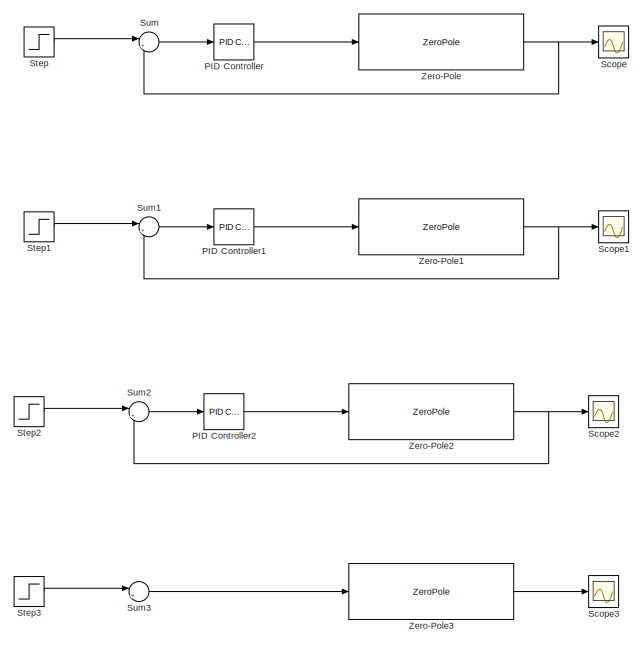
[diagram: root canvas - part 1/2, top center region]
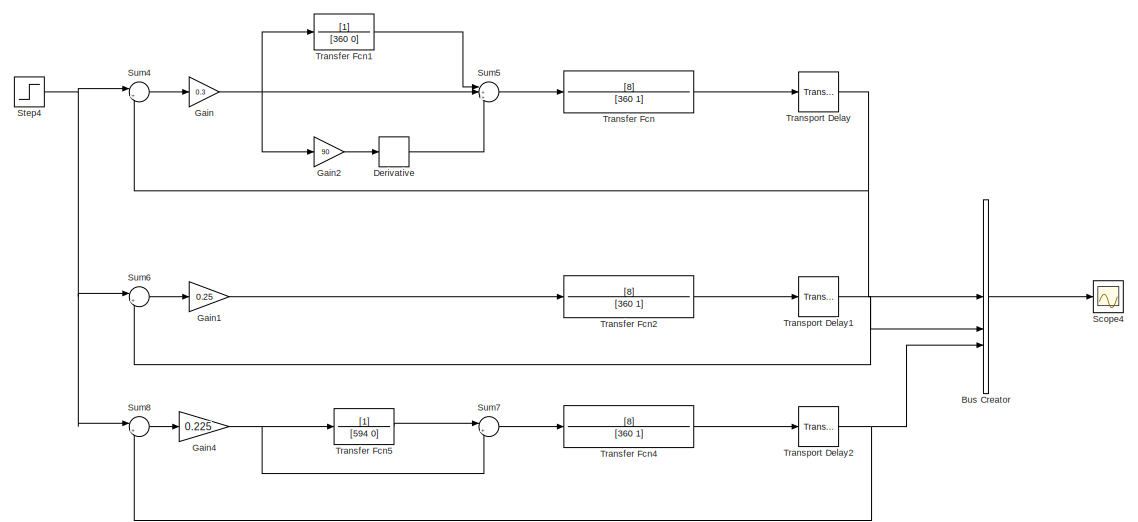
[diagram: root canvas - part 2/2, full width, bottom band]
MODEL slx_8572aa039337
KIND model
CONFIG AbsTol = auto
CONFIG EnableMultiTasking = off
CONFIG FixedStep = auto
CONFIG MaxStep = auto
CONFIG MinStep = auto
CONFIG RelTol = 1e-3
CONFIG SampleTimeConstraint = Unconstrained
CONFIG SolverName = VariableStepAuto
CONFIG StartTime = 0.0
CONFIG StopTime = 3000
BLOCK [BusCreator] Bus Creator
  DisplayOption = bar
  InheritFromInputs = on
  Inputs = 3
BLOCK [Derivative] Derivative
BLOCK [Gain] Gain
  Gain = 0.3
BLOCK [Gain] Gain1
  Gain = 0.25
BLOCK [Gain] Gain2
  Gain = 90
BLOCK [Gain] Gain4
  Gain = 0.225
BLOCK [Reference] PID Controller  REF=slpidlib/PID Controller
  LibrarySourceBlock = simulink/Continuous/PID Controller
  SourceBlock = slpidlib/PID Controller
  SourceType = PID 1dof
BLOCK [Reference] PID Controller1  REF=slpidlib/PID Controller
  LibrarySourceBlock = simulink/Continuous/PID Controller
  SourceBlock = slpidlib/PID Controller
  SourceType = PID 1dof
BLOCK [Reference] PID Controller2  REF=slpidlib/PID Controller
  LibrarySourceBlock = simulink/Continuous/PID Controller
  SourceBlock = slpidlib/PID Controller
  SourceType = PID 1dof
BLOCK [Scope] Scope
  Floating = off
  NumInputPorts = 1
  ScopeSpecificationString = Simulink.scopes.TimeScopeBlockCfg('CurrentConfiguration', extmgr.ConfigurationSet(extmgr.Configuration('Core','General UI',true),extmgr.Configuration('Core','Source UI',true),extmgr.Configuration('Sources','WiredSimulink',true),extmgr.Configuration('Visuals','Time Domain',true,'SerializedDisplays',{struct('MinYLimReal','-0.17529','MaxYLimReal','1.57757','YLabelReal','','MinYLimMag','0.00000','MaxY...<+1361ch>
BLOCK [Scope] Scope1
  Floating = off
  NumInputPorts = 1
  ScopeSpecificationString = Simulink.scopes.TimeScopeBlockCfg('CurrentConfiguration', extmgr.ConfigurationSet(extmgr.Configuration('Core','General UI',true),extmgr.Configuration('Core','Source UI',true),extmgr.Configuration('Sources','WiredSimulink',true,'DataLoggingVariableName','ScopeData1'),extmgr.Configuration('Visuals','Time Domain',true,'SerializedDisplays',{struct('MinYLimReal','-0.17882','MaxYLimReal','1.60935','YLab...<+1402ch>
BLOCK [Scope] Scope2
  Floating = off
  NumInputPorts = 1
  ScopeSpecificationString = Simulink.scopes.TimeScopeBlockCfg('CurrentConfiguration', extmgr.ConfigurationSet(extmgr.Configuration('Core','General UI',true),extmgr.Configuration('Core','Source UI',true),extmgr.Configuration('Sources','WiredSimulink',true,'DataLoggingVariableName','ScopeData2'),extmgr.Configuration('Visuals','Time Domain',true,'SerializedDisplays',{struct('MinYLimReal','-0.13659','MaxYLimReal','1.22931','YLab...<+1401ch>
BLOCK [Scope] Scope3
  Floating = off
  NumInputPorts = 1
  ScopeSpecificationString = Simulink.scopes.TimeScopeBlockCfg('CurrentConfiguration', extmgr.ConfigurationSet(extmgr.Configuration('Core','General UI',true),extmgr.Configuration('Core','Source UI',true),extmgr.Configuration('Sources','WiredSimulink',true,'DataLoggingVariableName','ScopeData3'),extmgr.Configuration('Visuals','Time Domain',true,'SerializedDisplays',{struct('MinYLimReal','-0.11844','MaxYLimReal','1.06594','YLab...<+1401ch>
BLOCK [Scope] Scope4
  Floating = off
  NumInputPorts = 1
  ScopeSpecificationString = Simulink.scopes.TimeScopeBlockCfg('CurrentConfiguration', extmgr.ConfigurationSet(extmgr.Configuration('Core','General UI',true),extmgr.Configuration('Core','Source UI',true),extmgr.Configuration('Sources','WiredSimulink',true,'DataLoggingVariableName','ScopeData1'),extmgr.Configuration('Visuals','Time Domain',true,'SerializedDisplays',{struct('MinYLimReal','-0.16309','MaxYLimReal','1.46784','YLab...<+1468ch>
BLOCK [Step] Step
  SampleTime = 0
  Time = 0
BLOCK [Step] Step1
  SampleTime = 0
  Time = 0
BLOCK [Step] Step2
  SampleTime = 0
  Time = 0
BLOCK [Step] Step3
  SampleTime = 0
  Time = 0
BLOCK [Step] Step4
  SampleTime = 0
  Time = 0
BLOCK [Sum] Sum
  Inputs = |+-
BLOCK [Sum] Sum1
  Inputs = |+-
BLOCK [Sum] Sum2
  Inputs = |+-
BLOCK [Sum] Sum3
  Inputs = |+-
BLOCK [Sum] Sum4
  Inputs = |+-
BLOCK [Sum] Sum5
  Inputs = |+++
BLOCK [Sum] Sum6
  Inputs = |+-
BLOCK [Sum] Sum7
  Inputs = |++
BLOCK [Sum] Sum8
  Inputs = |+-
BLOCK [TransferFcn] Transfer Fcn
  Denominator = [360 1]
  Numerator = [8]
BLOCK [TransferFcn] Transfer Fcn1
  Denominator = [360 0]
BLOCK [TransferFcn] Transfer Fcn2
  Denominator = [360 1]
  Numerator = [8]
BLOCK [TransferFcn] Transfer Fcn4
  Denominator = [360 1]
  Numerator = [8]
BLOCK [TransferFcn] Transfer Fcn5
  Denominator = [594 0]
BLOCK [TransportDelay] Transport Delay
  DelayTime = 180
BLOCK [TransportDelay] Transport Delay1
  DelayTime = 180
BLOCK [TransportDelay] Transport Delay2
  DelayTime = 180
BLOCK [ZeroPole] Zero-Pole
  Gain = [10]
  Poles = [-1 -3 -5]
  Zeros = []
BLOCK [ZeroPole] Zero-Pole1
  Gain = [10]
  Poles = [-1 -3 -5]
  Zeros = []
BLOCK [ZeroPole] Zero-Pole2
  Gain = [10]
  Poles = [-1 -3 -5]
  Zeros = []
BLOCK [ZeroPole] Zero-Pole3
  Poles = [0 -1 -20]
  Zeros = []
LINE Bus Creator:1 -> Scope4:1
LINE Derivative:1 -> Sum5:3
LINE Gain1:1 -> Transfer Fcn2:1
LINE Gain2:1 -> Derivative:1
NET Gain4:1 -> Sum7:2, Transfer Fcn5:1
NET Gain:1 -> Gain2:1, Sum5:2, Transfer Fcn1:1
LINE PID Controller1:1 -> Zero-Pole1:1
LINE PID Controller2:1 -> Zero-Pole2:1
LINE PID Controller:1 -> Zero-Pole:1
LINE Step1:1 -> Sum1:1
LINE Step2:1 -> Sum2:1
LINE Step3:1 -> Sum3:1
NET Step4:1 -> Sum4:1, Sum6:1, Sum8:1
LINE Step:1 -> Sum:1
LINE Sum1:1 -> PID Controller1:1
LINE Sum2:1 -> PID Controller2:1
LINE Sum3:1 -> Zero-Pole3:1
LINE Sum4:1 -> Gain:1
LINE Sum5:1 -> Transfer Fcn:1
LINE Sum6:1 -> Gain1:1
LINE Sum7:1 -> Transfer Fcn4:1
LINE Sum8:1 -> Gain4:1
LINE Sum:1 -> PID Controller:1
LINE Transfer Fcn1:1 -> Sum5:1
LINE Transfer Fcn2:1 -> Transport Delay1:1
LINE Transfer Fcn4:1 -> Transport Delay2:1
LINE Transfer Fcn5:1 -> Sum7:1
LINE Transfer Fcn:1 -> Transport Delay:1
NET Transport Delay1:1 -> Bus Creator:2, Sum6:2
NET Transport Delay2:1 -> Bus Creator:3, Sum8:2
NET Transport Delay:1 -> Bus Creator:1, Sum4:2
NET Zero-Pole1:1 -> Scope1:1, Sum1:2
NET Zero-Pole2:1 -> Scope2:1, Sum2:2
LINE Zero-Pole3:1 -> Scope3:1
NET Zero-Pole:1 -> Scope:1, Sum:2
note: NET lines group one-source signal fan-out (src -> all destinations, sorted); 1:1 wires keep LINE
